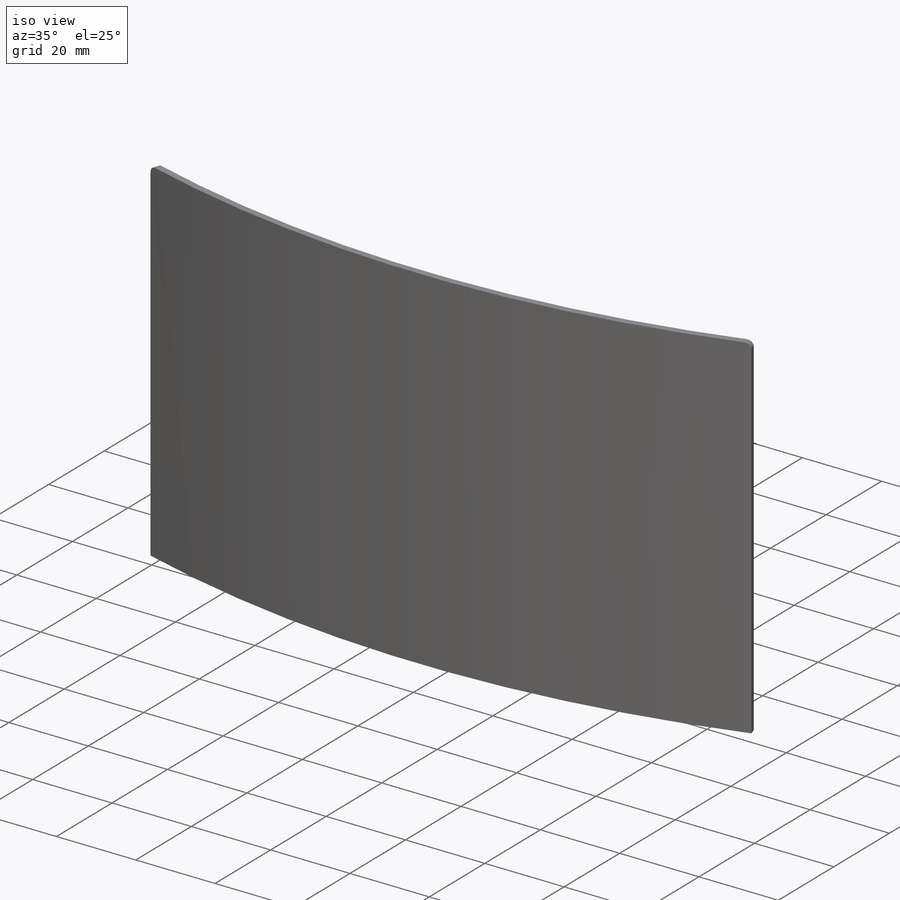
[diagram: iso view]
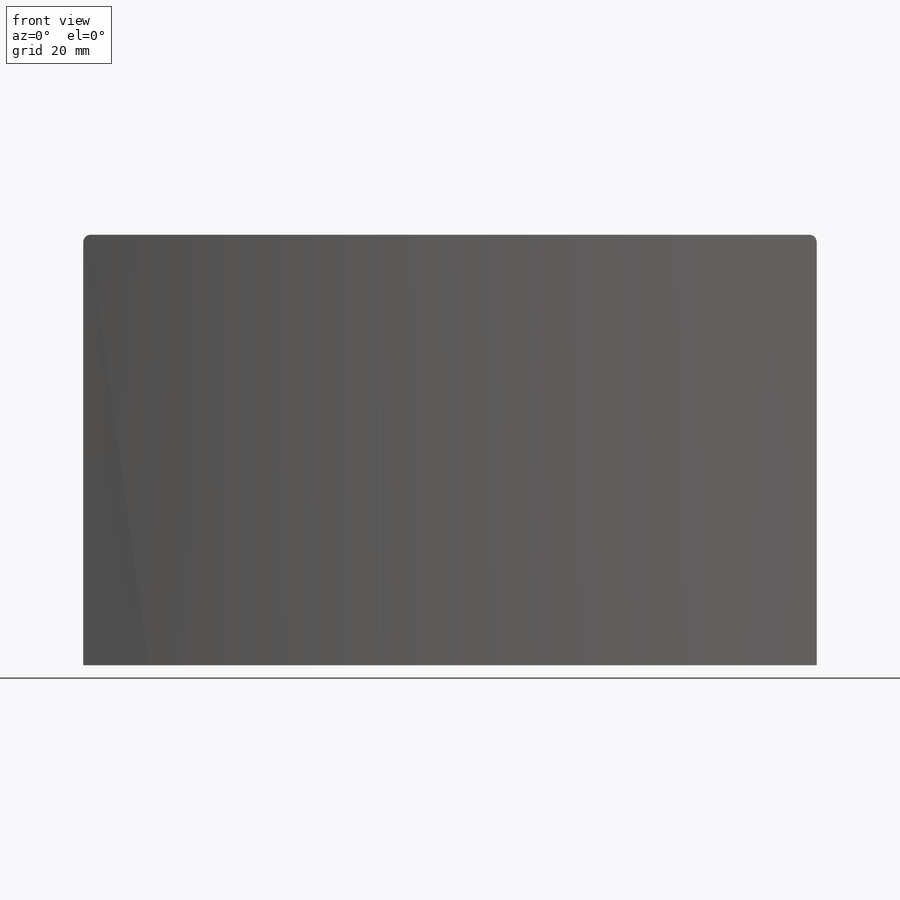
[diagram: front view]
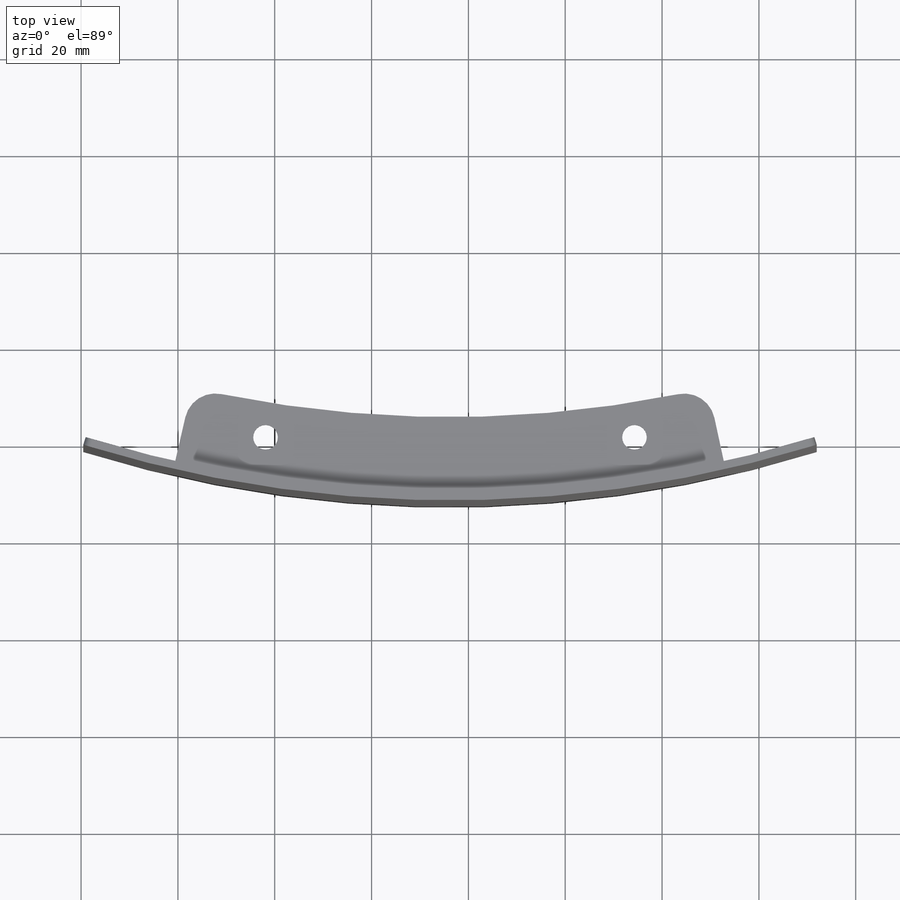
[diagram: top view]
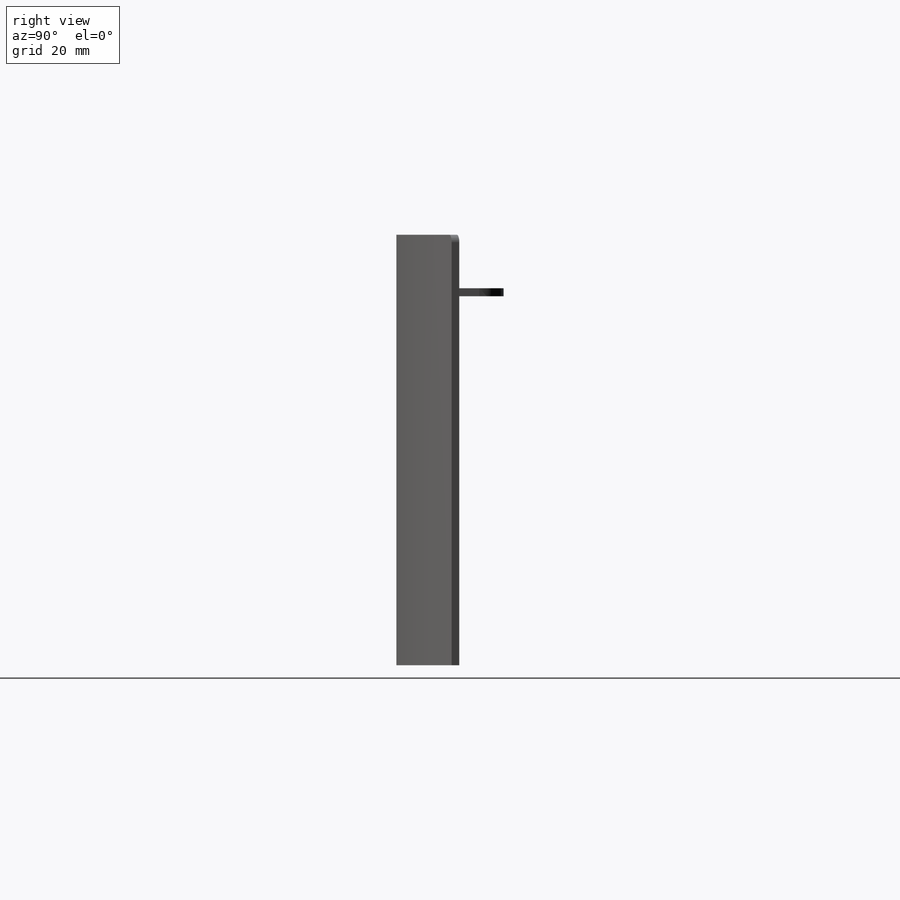
[diagram: right view]
SOLIDWORKS PART (.sldprt)
format: sldprt  version: not decoded by parser v0  size: 223,232 bytes
history: native  units: mm
features: fillet x2, sketch x2, cut_extrude x2, material x1, plane x1 + 5 further entries (+12 scaffold rows collapsed)
feature tree (25):
  scaffold x12  (default folders/planes/origin — collapsed)
  material  "Material <not specified>"
  "Move Face2"
  plane  "Plane1"  Offset=25.4mm
  "Move Face3"
  fillet  "Fillet1"  Radius=1.524mm
  sketch  "Sketch1"  dims[D2=19.05mm D1=0.0mm]
  cut_extrude  "Cut-Extrude1"  Depth=5.08mm
  fillet  "Fillet2"  Radius=6.35mm
  sketch  "Sketch2"  dims[D1=5.08mm]
  cut_extrude  "Cut-Extrude2"  Depth=5.08mm
  "Move Face4"
  "Move Face5"
  "Move Face6"
decode coverage: 6 of 6 modeling features carry decoded parameters; 5 rows unclassified (native names shown)
note: suppression state not decoded; provenance and decode notes live in map.json
